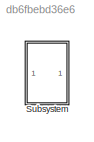
MODEL slx_db6fbebd36e6
KIND model
CONFIG AbsTol = auto
CONFIG EnableMultiTasking = off
CONFIG FixedStep = auto
CONFIG MaxStep = auto
CONFIG MinStep = auto
CONFIG RelTol = 1e-3
CONFIG SampleTimeConstraint = Unconstrained
CONFIG Solver = VariableStepAuto
CONFIG SolverName = VariableStepAuto
CONFIG StartTime = 0.0
CONFIG StopTime = 1500
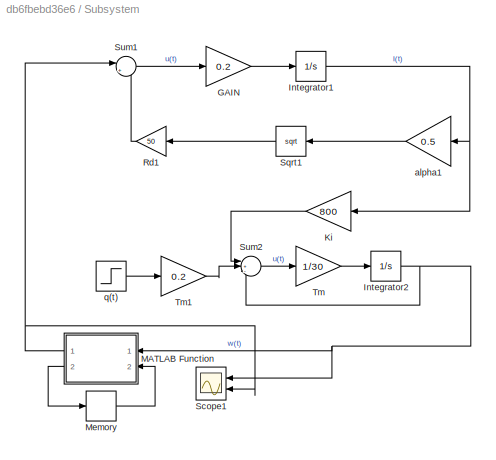
BLOCK [SubSystem] Subsystem
  Ports = []
  RequestExecContextInheritance = off
BLOCK [Gain] Subsystem/GAIN
  Gain = 0.2
  OutDataTypeStr = Inherit: Inherit via internal rule
  ParamDataTypeStr = Inherit: Inherit via internal rule
  SaturateOnIntegerOverflow = off
BLOCK [Integrator] Subsystem/Integrator1
  InitialCondition = 0.0072
  Ports = [1, 1]
BLOCK [Integrator] Subsystem/Integrator2
  InitialCondition = 15
  Ports = [1, 1]
BLOCK [Gain] Subsystem/Ki
  Gain = 800
  OutDataTypeStr = Inherit: Inherit via internal rule
  ParamDataTypeStr = Inherit: Inherit via internal rule
  SaturateOnIntegerOverflow = off
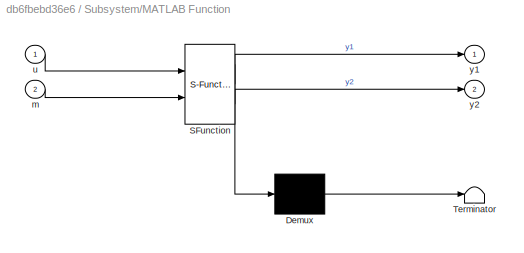
BLOCK [SubSystem] Subsystem/MATLAB Function
  ErrorFcn = Stateflow.Translate.translate
  PermitHierarchicalResolution = ExplicitOnly
  Ports = [2, 2]
  RequestExecContextInheritance = off
  SFBlockType = MATLAB Function
  TreatAsAtomicUnit = on
BLOCK [Demux] Subsystem/MATLAB Function/ Demux 
  Outputs = 1
  Ports = [1, 1]
BLOCK [S-Function] Subsystem/MATLAB Function/ SFunction 
  EnableBusSupport = on
  FunctionName = sf_sfun
  PortCounts = [2 3]
  Ports = [2, 3]
  SFcnIsStateOwnerBlock = off
  SFunctionDeploymentMode = off
  Tag = Stateflow S-Function on_of 2
BLOCK [Terminator] Subsystem/MATLAB Function/ Terminator 
BLOCK [Inport] Subsystem/MATLAB Function/m
  IconDisplay = Port number
  Port = 2
BLOCK [Inport] Subsystem/MATLAB Function/u
  IconDisplay = Port number
BLOCK [Outport] Subsystem/MATLAB Function/y1
  IconDisplay = Port number
BLOCK [Outport] Subsystem/MATLAB Function/y2
  IconDisplay = Port number
  Port = 2
BLOCK [Memory] Subsystem/Memory
  InitialCondition = 1
BLOCK [Gain] Subsystem/Rd1
  Gain = 50
  OutDataTypeStr = Inherit: Inherit via internal rule
  ParamDataTypeStr = Inherit: Inherit via internal rule
  SaturateOnIntegerOverflow = off
BLOCK [Scope] Subsystem/Scope1
  Floating = off
  NumInputPorts = 2
  Ports = [2]
  ScopeSpecificationString = Simulink.scopes.TimeScopeBlockCfg('CurrentConfiguration', extmgr.ConfigurationSet(extmgr.Configuration('Core','General UI',true),extmgr.Configuration('Core','Source UI',true),extmgr.Configuration('Sources','WiredSimulink',true,'DataLoggingVariableName','ScopeData1'),extmgr.Configuration('Visuals','Time Domain',true,'SerializedDisplays',{struct('MinYLimReal','-0.81503','MaxYLimReal','17.33529','YLa...<+1417ch>
BLOCK [Sqrt] Subsystem/Sqrt1
BLOCK [Sum] Subsystem/Sum1
  IconShape = round
  InputSameDT = off
  Inputs = |+-
  OutDataTypeStr = Inherit: Inherit via internal rule
  Ports = [2, 1]
  SaturateOnIntegerOverflow = off
BLOCK [Sum] Subsystem/Sum2
  IconShape = round
  InputSameDT = off
  Inputs = |+--
  OutDataTypeStr = Inherit: Inherit via internal rule
  Ports = [3, 1]
  SaturateOnIntegerOverflow = off
BLOCK [Gain] Subsystem/Tm
  Gain = 1/30
  OutDataTypeStr = Inherit: Inherit via internal rule
  ParamDataTypeStr = Inherit: Inherit via internal rule
  SaturateOnIntegerOverflow = off
BLOCK [Gain] Subsystem/Tm1
  Gain = 0.2
  OutDataTypeStr = Inherit: Inherit via internal rule
  ParamDataTypeStr = Inherit: Inherit via internal rule
  SaturateOnIntegerOverflow = off
BLOCK [Gain] Subsystem/alpha1
  Gain = 0.5
  OutDataTypeStr = Inherit: Inherit via internal rule
  ParamDataTypeStr = Inherit: Inherit via internal rule
  SaturateOnIntegerOverflow = off
BLOCK [Step] Subsystem/q(t)
  Before = 1
  SampleTime = 0
LINE Subsystem/GAIN:1 -> Subsystem/Integrator1:1
NET Subsystem/Integrator1:1 -> Subsystem/Ki:1, Subsystem/alpha1:1
NET Subsystem/Integrator2:1 -> Subsystem/MATLAB Function:1, Subsystem/Scope1:1, Subsystem/Sum2:3
LINE Subsystem/Ki:1 -> Subsystem/Sum2:1
NET Subsystem/MATLAB Function:1 -> Subsystem/Scope1:2, Subsystem/Sum1:1
LINE Subsystem/MATLAB Function:2 -> Subsystem/Memory:1
LINE Subsystem/Memory:1 -> Subsystem/MATLAB Function:2
LINE Subsystem/Rd1:1 -> Subsystem/Sum1:2
LINE Subsystem/Sqrt1:1 -> Subsystem/Rd1:1
LINE Subsystem/Sum1:1 -> Subsystem/GAIN:1
LINE Subsystem/Sum2:1 -> Subsystem/Tm:1
LINE Subsystem/Tm1:1 -> Subsystem/Sum2:2
LINE Subsystem/Tm:1 -> Subsystem/Integrator2:1
LINE Subsystem/alpha1:1 -> Subsystem/Sqrt1:1
LINE Subsystem/q(t):1 -> Subsystem/Tm1:1
note: NET lines group one-source signal fan-out (src -> all destinations, sorted); 1:1 wires keep LINE
CHART Subsystem/MATLAB Function states=1 transitions=1
  STATE_LABEL 'eML_blk_kernel()'
  STATE_LABEL 'SCRIPT:\nfunction [y1, y2]= fcn(u, m)\n\nlower_bound = 5;\nupper_bound = 15;\nactive = m;\nif active\n    y1 = 5;\nelse\n    y1 = 1;\nend\n\nif u>=upper_bound\n    active = 0;\nelseif u<=lower_bound\n    active = 1;\nend\ny2 = active;'
